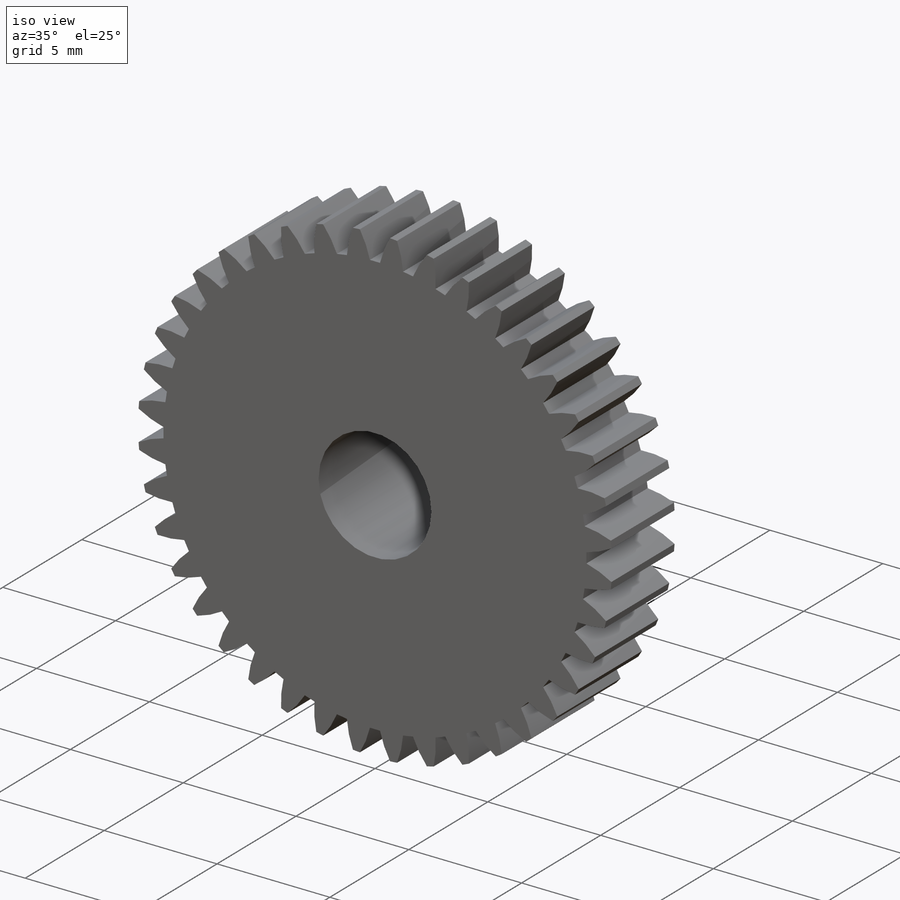
[diagram: iso view]
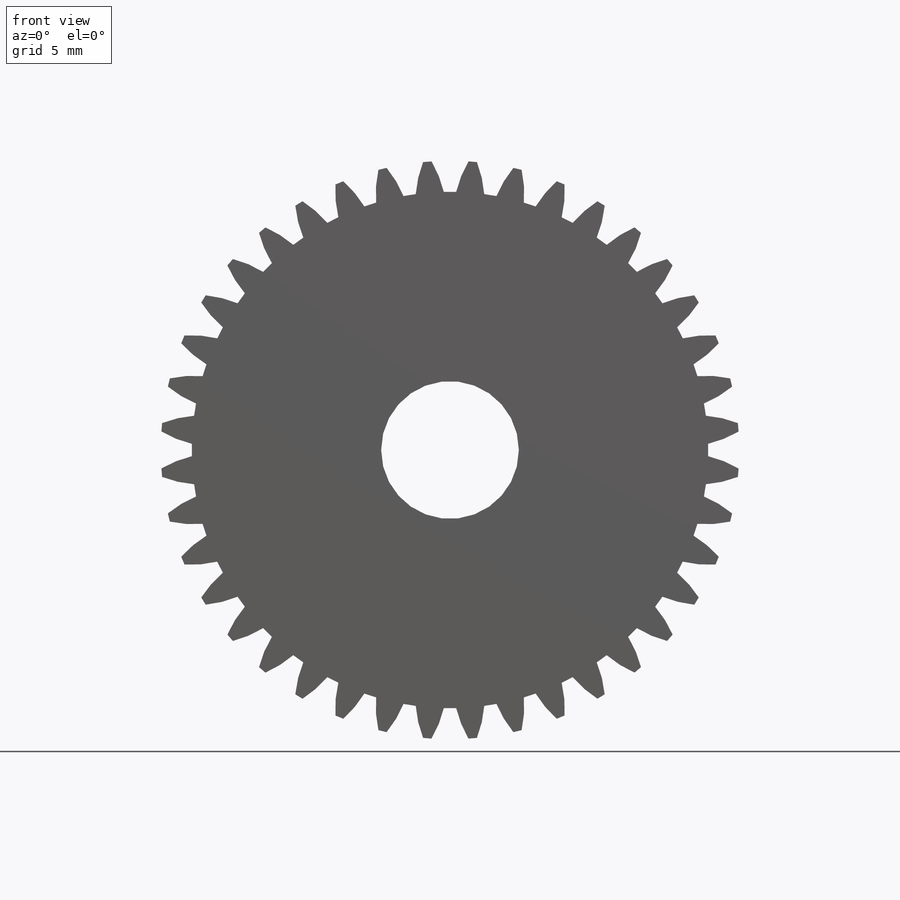
[diagram: front view]
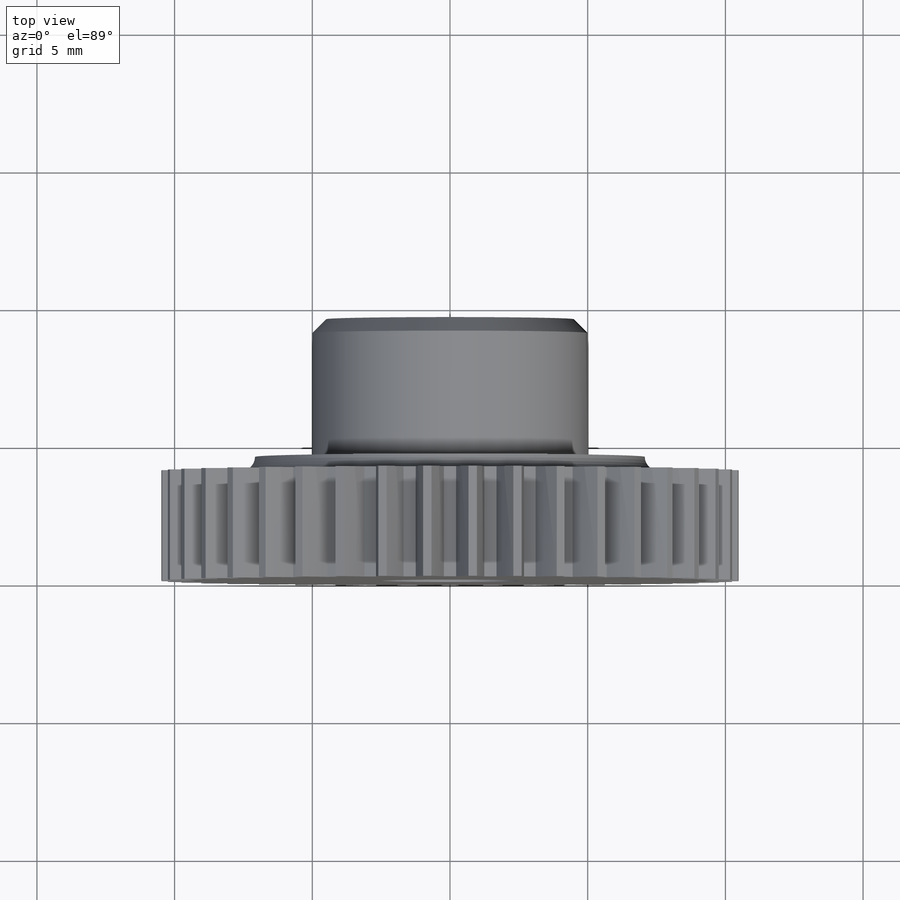
[diagram: top view]
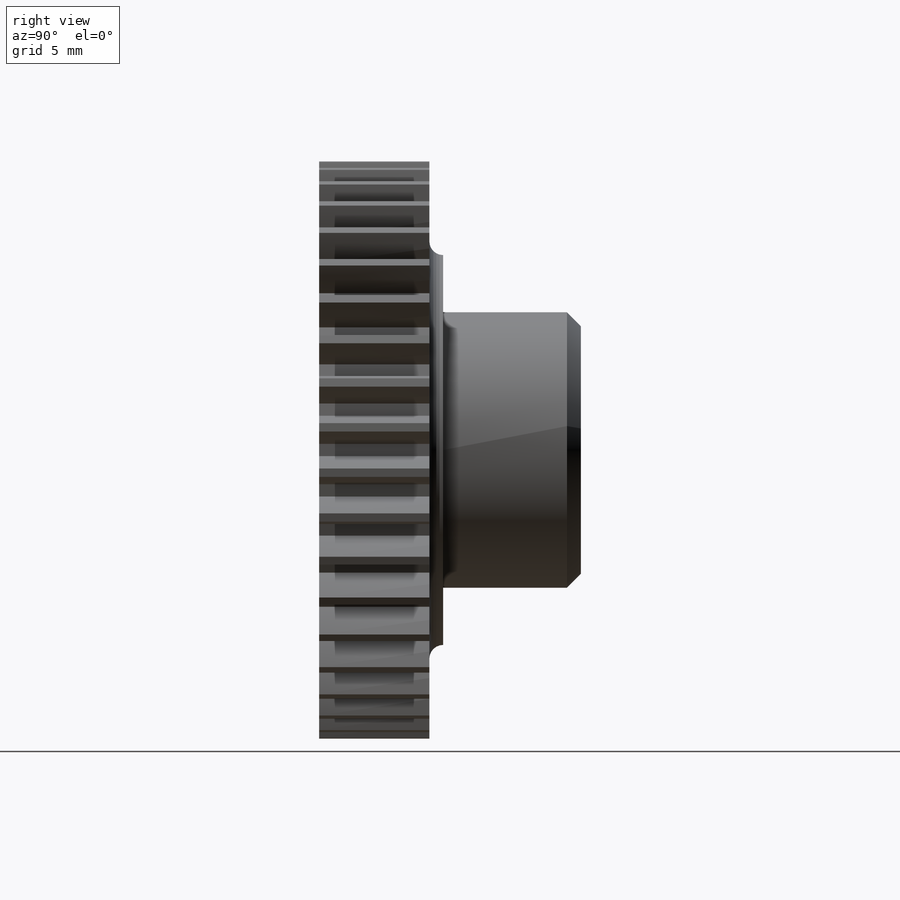
[diagram: right view]
SOLIDWORKS PART (.sldprt)
format: sldprt  version: not decoded by parser v0  size: 541,696 bytes
history: native  units: mm
features: plane x7, sketch x4, cut_extrude x2, extrude x2, material x1, move_body x1, fillet x1, chamfer x1 + 4 further entries (+14 scaffold rows collapsed; 3 parser-record rows omitted)
feature tree (40):
  scaffold x14  (default folders/planes/origin — collapsed)
  material  "PVC hart"
  plane  "Ebene vorne"
  plane  "Ebene oben"
  plane  "Ebene rechts"
  plane  "Plane1-DIN - Spur gear 0.5M 40T 20PA 5FW ---S40A75H50L3.0N"
  plane  "Plane2-DIN - Spur gear 0.5M 40T 20PA 5FW ---S40A75H50L3.0N"
  plane  "Plane3-DIN - Spur gear 0.5M 40T 20PA 5FW ---S40A75H50L3.0N"
  plane  "FarPln-DIN - Spur gear 0.5M 40T 20PA 5FW ---S40A75H50L3.0N"
  "DIN - Spur gear 0.5M 40T 20PA 5FW ---S40A75H50L3.0N"
  parser-record x3  (decoder bookkeeping rows leaked as tree rows — omitted from the tree; the rows remain in map.json)
  move_body  "Körper-Verschieben/Kopieren2"
  "Deckungsgleich1"
  "Deckungsgleich2"
  "Deckungsgleich3"
  sketch  "Skizze1"  dims[D1=50.0mm D2=4.0mm]
  cut_extrude  "Schnitt-Linear austragen1"  [1 undecoded]
  sketch  "Skizze2"  dims[D1=10.0mm D2=~14.159103mm D3=5.0mm]
  extrude  "Aufsatz-Linear austragen1"  Depth=9.5mm
  extrude  "Aufsatz-Linear austragen2"  [1 undecoded]
  sketch  "Skizze2<3>"  dims[D1=5.0mm]
  cut_extrude  "Schnitt-Linear austragen2"  [1 undecoded]
  sketch  "Skizze2<4>"
  fillet  "Verrundung1"  Radius=0.5mm
  chamfer  "Fase1"  Distance=0.5mm Angle=45deg
decode coverage: 6 of 11 modeling features carry decoded parameters; 4 rows unclassified (native names shown)
note: ~ marks probable driven/reference dimensions
note: 3 parameter values undecoded
summary: no parameter record found for 3 features
note: suppression state not decoded; provenance and decode notes live in map.json
